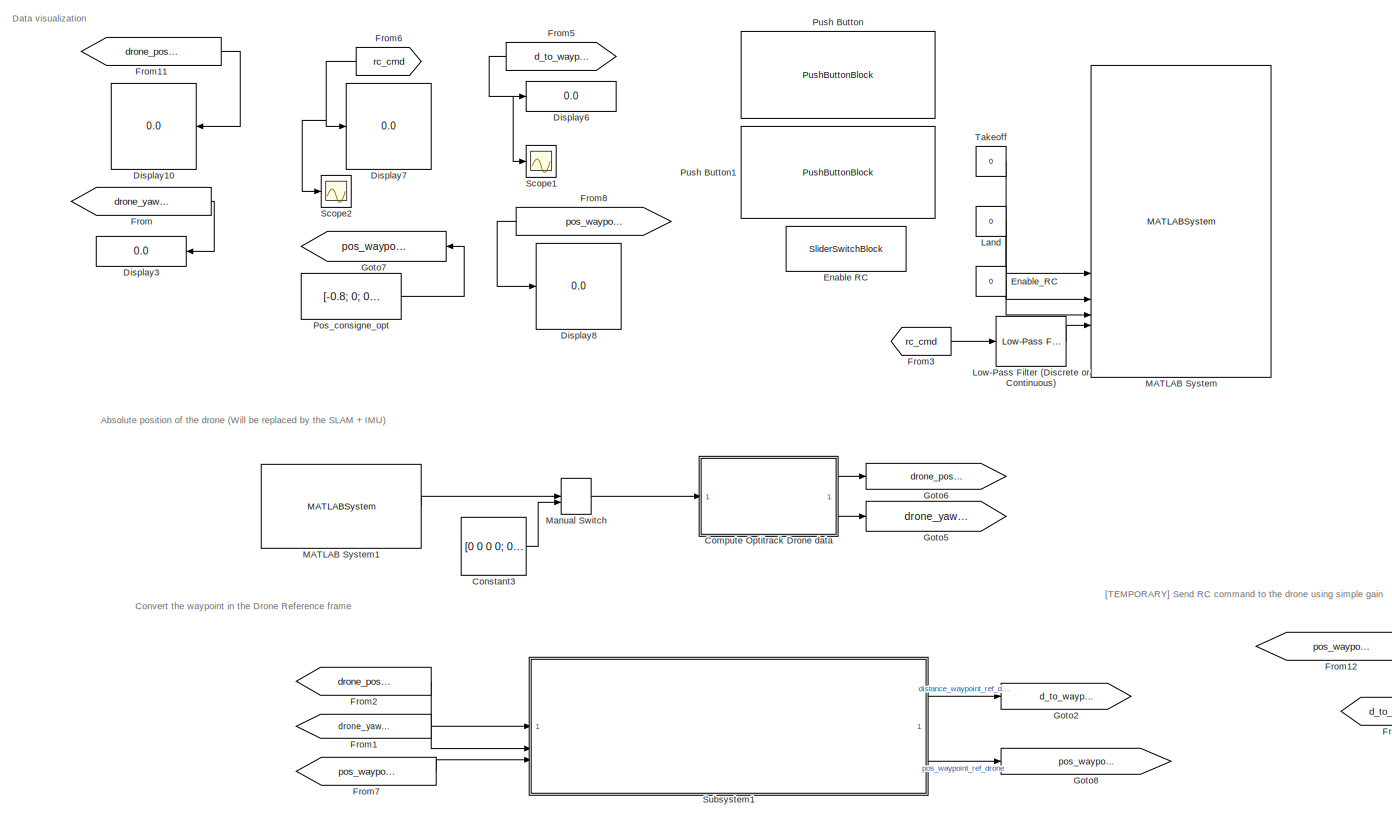
[diagram: root canvas - part 1/2, center side, full height]
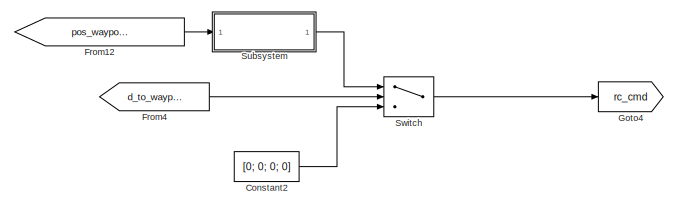
[diagram: root canvas - part 2/2, bottom right region]
MODEL slx_1315aa12b2da
KIND model
CONFIG AbsTol = auto
CONFIG EnableMultiTasking = off
CONFIG FixedStep = 0.1
CONFIG MaxStep = auto
CONFIG MinStep = auto
CONFIG RelTol = 1e-3
CONFIG SampleTimeConstraint = Unconstrained
CONFIG SolverName = FixedStepAuto
CONFIG StartTime = 0.0
CONFIG StopTime = inf
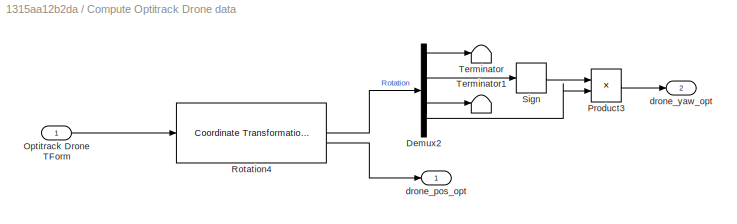
BLOCK [SubSystem] Compute Optitrack Drone data
BLOCK [Demux] Compute Optitrack Drone data/Demux2
BLOCK [Inport] Compute Optitrack Drone data/Optitrack Drone TForm
BLOCK [Product] Compute Optitrack Drone data/Product3
BLOCK [Reference] Compute Optitrack Drone data/Rotation4  REF=robotcorelib/Coordinate Transformation Conversion
  LibrarySourceBlock = uavutilslib/Coordinate Transformation Conversion
  SourceBlock = robotcorelib/Coordinate Transformation Conversion
  SourceType = robotics.slcore.internal.block.CoordinateTransformationConversion
BLOCK [Signum] Compute Optitrack Drone data/Sign
BLOCK [Terminator] Compute Optitrack Drone data/Terminator
BLOCK [Terminator] Compute Optitrack Drone data/Terminator1
BLOCK [Outport] Compute Optitrack Drone data/drone_pos_opt
BLOCK [Outport] Compute Optitrack Drone data/drone_yaw_opt
  Port = 2
BLOCK [Constant] Constant2
  Value = [0; 0; 0; 0]
BLOCK [Constant] Constant3
  Value = [0 0 0 0; 0 0 0 0; 0 0 0 0; 0 0 0 0]
BLOCK [Display] Display10
  Decimation = 1
  NameLocation = top
BLOCK [Display] Display3
  Decimation = 1
  NameLocation = top
BLOCK [Display] Display6
  Decimation = 1
BLOCK [Display] Display7
  Decimation = 1
BLOCK [Display] Display8
  Decimation = 1
BLOCK [SliderSwitchBlock] Enable RC
BLOCK [Constant] Enable_RC
  Value = 0
BLOCK [From] From
  GotoTag = drone_yaw_ref_opt
BLOCK [From] From1
  GotoTag = drone_yaw_ref_opt
BLOCK [From] From11
  GotoTag = drone_pos_ref_opt
BLOCK [From] From12
  GotoTag = pos_waypoint_ref_drone
BLOCK [From] From2
  GotoTag = drone_pos_ref_opt
BLOCK [From] From3
  GotoTag = rc_cmd
BLOCK [From] From4
  GotoTag = d_to_waypoint
BLOCK [From] From5
  GotoTag = d_to_waypoint
  NameLocation = top
BLOCK [From] From6
  GotoTag = rc_cmd
  NameLocation = top
BLOCK [From] From7
  GotoTag = pos_waypoint_ref_opt
BLOCK [From] From8
  GotoTag = pos_waypoint_ref_drone
  NameLocation = top
BLOCK [Goto] Goto2
  GotoTag = d_to_waypoint
BLOCK [Goto] Goto4
  GotoTag = rc_cmd
BLOCK [Goto] Goto5
  GotoTag = drone_yaw_ref_opt
BLOCK [Goto] Goto6
  GotoTag = drone_pos_ref_opt
BLOCK [Goto] Goto7
  GotoTag = pos_waypoint_ref_opt
  NameLocation = top
BLOCK [Goto] Goto8
  GotoTag = pos_waypoint_ref_drone
BLOCK [Constant] Land
  Value = 0
BLOCK [Reference] Low-Pass Filter (Discrete or Continuous)  REF=eeGeneralControl/Low-Pass Filter
(Discrete or Continuous)
  LibrarySourceBlock = ee_sl_lib/General Control/Low-Pass Filter\n(Discrete or Continuous)
  SourceBlock = eeGeneralControl/Low-Pass Filter\n(Discrete or Continuous)
  SourceType = Low-Pass Filter (Discrete or Continuous)
BLOCK [MATLABSystem] MATLAB System
  MaskDisplay = disp('Tello_drone_controlv2');\nport_label('input',1,'Slam');\nport_label('input',2,'tkoff');\nport_label('input',3,'landing');\nport_label('input',4,'enableRC');\nport_label('input',5,'rcspeeds');\nport_label('output',1,'imgresize');\nport_label('output',2,'Eulerangles');\nport_label('output',3,'speedXYZ');\nport_label('output',4,'accelXYZ');
  MaskType = Tello_drone_controlv2
  SimulateUsing = Interpreted execution
  System = Tello_drone_controlv2
  droneIP = 10.147.125.12
BLOCK [MATLABSystem] MATLAB System1
  ClientIP = 10.147.125.1
  HostIP = 10.147.125.15
  MaskDisplay = disp('OptilinkSystem');\nport_label('output',1,'Drones data');\nport_label('output',2,'Connected');
  MaskType = OptilinkSystem
  RigidbodyID = 3
  SimulateUsing = Interpreted execution
  System = OptilinkSystem
BLOCK [ManualSwitch] Manual Switch
BLOCK [Constant] Pos_consigne_opt
  Value = [-0.8; 0; 0.8; 1]
BLOCK [PushButtonBlock] Push Button
  ButtonText = Décoler
  OffValue = 0.000000
BLOCK [PushButtonBlock] Push Button1
  ButtonText = Atterir
  OffValue = 0.000000
BLOCK [Scope] Scope1
  Floating = off
  NumInputPorts = 1
  ScopeSpecificationString = Simulink.scopes.TimeScopeBlockCfg('CurrentConfiguration', extmgr.ConfigurationSet(extmgr.Configuration('Core','General UI',true),extmgr.Configuration('Core','Source UI',true),extmgr.Configuration('Sources','WiredSimulink',true,'DataLoggingVariableName','ScopeData1'),extmgr.Configuration('Visuals','Time Domain',true,'SerializedDisplays',{struct('MinYLimReal','2.298593','MaxYLimReal','2.298669','YLa...<+1546ch>
BLOCK [Scope] Scope2
  Floating = off
  NumInputPorts = 1
  ScopeSpecificationString = Simulink.scopes.TimeScopeBlockCfg('CurrentConfiguration', extmgr.ConfigurationSet(extmgr.Configuration('Core','General UI',true),extmgr.Configuration('Core','Source UI',true),extmgr.Configuration('Sources','WiredSimulink',true,'DataLoggingVariableName','ScopeData2'),extmgr.Configuration('Visuals','Time Domain',true,'SerializedDisplays',{struct('MinYLimReal','-0.9835','MaxYLimReal','8.85146','YLabe...<+1582ch>
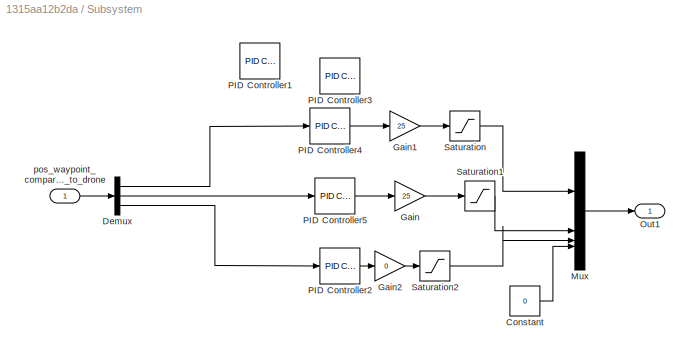
BLOCK [SubSystem] Subsystem
BLOCK [Constant] Subsystem/Constant
  Value = 0
BLOCK [Demux] Subsystem/Demux
  Outputs = 3
BLOCK [Gain] Subsystem/Gain
  Gain = 25
BLOCK [Gain] Subsystem/Gain1
  Gain = 25
BLOCK [Gain] Subsystem/Gain2
  Gain = 0
BLOCK [Mux] Subsystem/Mux
  DisplayOption = bar
BLOCK [Outport] Subsystem/Out1
BLOCK [Reference] Subsystem/PID Controller1  REF=slpidlib/PID Controller
  Commented = on
  LibrarySourceBlock = simulink/Continuous/PID Controller
  SourceBlock = slpidlib/PID Controller
  SourceType = PID 1dof
BLOCK [Reference] Subsystem/PID Controller2  REF=slpidlib/PID Controller
  LibrarySourceBlock = simulink/Continuous/PID Controller
  SourceBlock = slpidlib/PID Controller
  SourceType = PID 1dof
BLOCK [Reference] Subsystem/PID Controller3  REF=slpidlib/PID Controller
  Commented = on
  LibrarySourceBlock = simulink/Continuous/PID Controller
  SourceBlock = slpidlib/PID Controller
  SourceType = PID 1dof
BLOCK [Reference] Subsystem/PID Controller4  REF=slpidlib/PID Controller
  LibrarySourceBlock = simulink/Continuous/PID Controller
  SourceBlock = slpidlib/PID Controller
  SourceType = PID 1dof
BLOCK [Reference] Subsystem/PID Controller5  REF=slpidlib/PID Controller
  LibrarySourceBlock = simulink/Continuous/PID Controller
  SourceBlock = slpidlib/PID Controller
  SourceType = PID 1dof
BLOCK [Saturate] Subsystem/Saturation
  LowerLimit = -15
  UpperLimit = 10
BLOCK [Saturate] Subsystem/Saturation1
  LowerLimit = -15
  UpperLimit = 10
BLOCK [Saturate] Subsystem/Saturation2
  LowerLimit = -65
  UpperLimit = 65
BLOCK [Inport] Subsystem/pos_waypoint_compared_to_drone
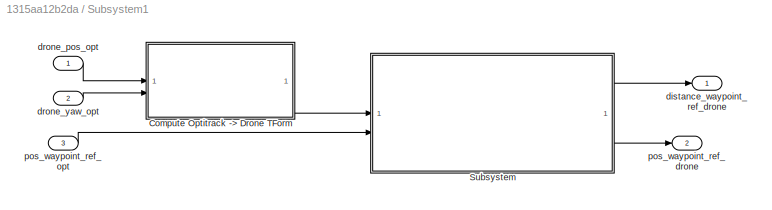
BLOCK [SubSystem] Subsystem1
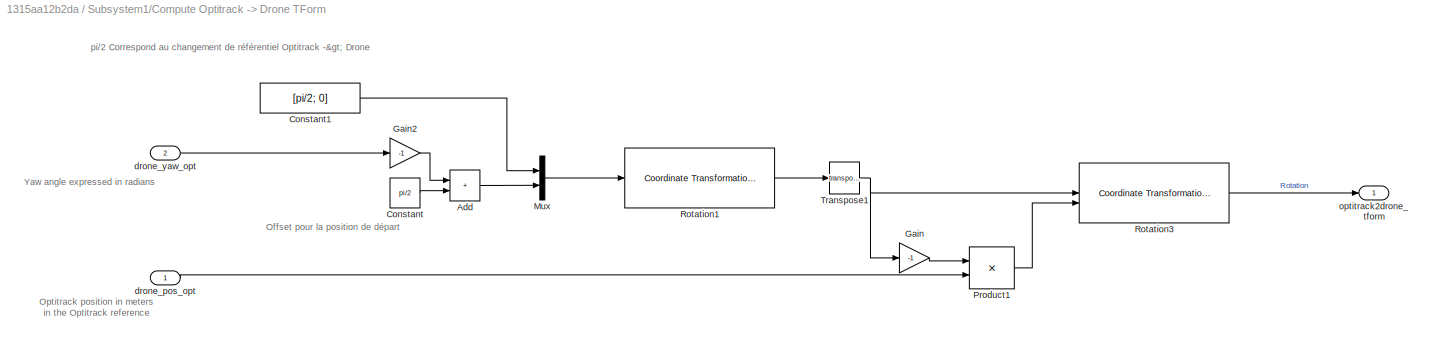
BLOCK [SubSystem] Subsystem1/Compute Optitrack -> Drone TForm
BLOCK [Sum] Subsystem1/Compute Optitrack -> Drone TForm/Add
  IconShape = rectangular
BLOCK [Constant] Subsystem1/Compute Optitrack -> Drone TForm/Constant
  Value = pi/2
BLOCK [Constant] Subsystem1/Compute Optitrack -> Drone TForm/Constant1
  Value = [pi/2; 0]
BLOCK [Gain] Subsystem1/Compute Optitrack -> Drone TForm/Gain
  Gain = -1
BLOCK [Gain] Subsystem1/Compute Optitrack -> Drone TForm/Gain2
  Gain = -1
BLOCK [Mux] Subsystem1/Compute Optitrack -> Drone TForm/Mux
  DisplayOption = bar
  Inputs = 2
BLOCK [Product] Subsystem1/Compute Optitrack -> Drone TForm/Product1
  Multiplication = Matrix(*)
BLOCK [Reference] Subsystem1/Compute Optitrack -> Drone TForm/Rotation1  REF=robotcorelib/Coordinate Transformation Conversion
  LibrarySourceBlock = uavutilslib/Coordinate Transformation Conversion
  SourceBlock = robotcorelib/Coordinate Transformation Conversion
  SourceType = robotics.slcore.internal.block.CoordinateTransformationConversion
BLOCK [Reference] Subsystem1/Compute Optitrack -> Drone TForm/Rotation3  REF=robotcorelib/Coordinate Transformation Conversion
  LibrarySourceBlock = uavutilslib/Coordinate Transformation Conversion
  SourceBlock = robotcorelib/Coordinate Transformation Conversion
  SourceType = robotics.slcore.internal.block.CoordinateTransformationConversion
BLOCK [Math] Subsystem1/Compute Optitrack -> Drone TForm/Transpose1
  Operator = transpose
BLOCK [Inport] Subsystem1/Compute Optitrack -> Drone TForm/drone_pos_opt
BLOCK [Inport] Subsystem1/Compute Optitrack -> Drone TForm/drone_yaw_opt
  Port = 2
BLOCK [Outport] Subsystem1/Compute Optitrack -> Drone TForm/optitrack2drone_tform
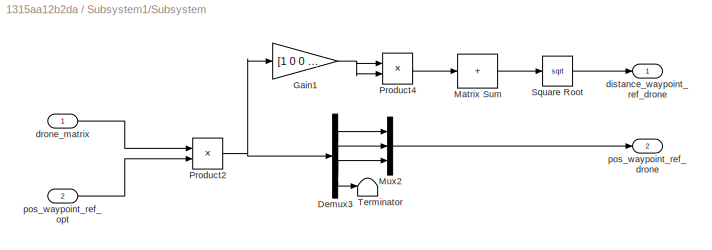
BLOCK [SubSystem] Subsystem1/Subsystem
BLOCK [Demux] Subsystem1/Subsystem/Demux3
BLOCK [Gain] Subsystem1/Subsystem/Gain1
  Gain = [1 0 0 0; 0 1 0 0; 0 0 0 0; 0 0 0 0]
  Multiplication = Matrix(K*u)
BLOCK [Sum] Subsystem1/Subsystem/Matrix Sum
  IconShape = rectangular
  Inputs = +
BLOCK [Mux] Subsystem1/Subsystem/Mux2
  DisplayOption = bar
  Inputs = 3
BLOCK [Product] Subsystem1/Subsystem/Product2
  Multiplication = Matrix(*)
BLOCK [Product] Subsystem1/Subsystem/Product4
BLOCK [Sqrt] Subsystem1/Subsystem/Square Root
BLOCK [Terminator] Subsystem1/Subsystem/Terminator
BLOCK [Outport] Subsystem1/Subsystem/distance_waypoint_ref_drone
BLOCK [Inport] Subsystem1/Subsystem/drone_matrix
BLOCK [Outport] Subsystem1/Subsystem/pos_waypoint_ref_drone
  Port = 2
BLOCK [Inport] Subsystem1/Subsystem/pos_waypoint_ref_opt
  Port = 2
BLOCK [Outport] Subsystem1/distance_waypoint_ref_drone
BLOCK [Inport] Subsystem1/drone_pos_opt
BLOCK [Inport] Subsystem1/drone_yaw_opt
  Port = 2
BLOCK [Outport] Subsystem1/pos_waypoint_ref_drone
  Port = 2
BLOCK [Inport] Subsystem1/pos_waypoint_ref_opt
  Port = 3
BLOCK [Switch] Switch
  Criteria = u2 > Threshold
  InputSameDT = off
  SaturateOnIntegerOverflow = off
  Threshold = 0.1
BLOCK [Constant] Takeoff
  Value = 0
ANNOTATION (root): Absolute position of the drone (Will be replaced by the SLAM + IMU)
ANNOTATION (root): Convert the waypoint in the Drone Reference frame
ANNOTATION (root): Data visualization
ANNOTATION (root): [TEMPORARY] Send RC command to the drone using simple gain
ANNOTATION Subsystem1/Compute Optitrack -> Drone TForm: pi/2 Correspond au changement de référentiel Optitrack -> Drone
ANNOTATION Subsystem1/Compute Optitrack -> Drone TForm: Optitrack position in meters in the Optitrack reference
ANNOTATION Subsystem1/Compute Optitrack -> Drone TForm: Yaw angle expressed in radians
ANNOTATION Subsystem1/Compute Optitrack -> Drone TForm: Offset pour la position de départ
LINE Compute Optitrack Drone data/Demux2:1 -> Compute Optitrack Drone data/Terminator:1
LINE Compute Optitrack Drone data/Demux2:2 -> Compute Optitrack Drone data/Sign:1
LINE Compute Optitrack Drone data/Demux2:3 -> Compute Optitrack Drone data/Terminator1:1
LINE Compute Optitrack Drone data/Demux2:4 -> Compute Optitrack Drone data/Product3:2
LINE Compute Optitrack Drone data/Optitrack Drone TForm:1 -> Compute Optitrack Drone data/Rotation4:1
LINE Compute Optitrack Drone data/Product3:1 -> Compute Optitrack Drone data/drone_yaw_opt:1
LINE Compute Optitrack Drone data/Rotation4:1 -> Compute Optitrack Drone data/Demux2:1
LINE Compute Optitrack Drone data/Rotation4:2 -> Compute Optitrack Drone data/drone_pos_opt:1
LINE Compute Optitrack Drone data/Sign:1 -> Compute Optitrack Drone data/Product3:1
LINE Compute Optitrack Drone data:1 -> Goto6:1
LINE Compute Optitrack Drone data:2 -> Goto5:1
LINE Constant2:1 -> Switch:3
LINE Constant3:1 -> Manual Switch:2
LINE Enable_RC:1 -> MATLAB System:4
LINE From11:1 -> Display10:1
LINE From12:1 -> Subsystem:1
LINE From1:1 -> Subsystem1:2
LINE From2:1 -> Subsystem1:1
LINE From3:1 -> Low-Pass Filter (Discrete or Continuous):1
LINE From4:1 -> Switch:2
NET From5:1 -> Display6:1, Scope1:1
NET From6:1 -> Display7:1, Scope2:1
LINE From7:1 -> Subsystem1:3
LINE From8:1 -> Display8:1
LINE From:1 -> Display3:1
LINE Land:1 -> MATLAB System:3
LINE Low-Pass Filter (Discrete or Continuous):1 -> MATLAB System:5
LINE MATLAB System1:1 -> Manual Switch:1
LINE Manual Switch:1 -> Compute Optitrack Drone data:1
LINE Pos_consigne_opt:1 -> Goto7:1
LINE Subsystem/Constant:1 -> Subsystem/Mux:4
LINE Subsystem/Demux:1 -> Subsystem/PID Controller4:1
LINE Subsystem/Demux:2 -> Subsystem/PID Controller5:1
LINE Subsystem/Demux:3 -> Subsystem/PID Controller2:1
LINE Subsystem/Gain1:1 -> Subsystem/Saturation:1
LINE Subsystem/Gain2:1 -> Subsystem/Saturation2:1
LINE Subsystem/Gain:1 -> Subsystem/Saturation1:1
LINE Subsystem/Mux:1 -> Subsystem/Out1:1
LINE Subsystem/PID Controller2:1 -> Subsystem/Gain2:1
LINE Subsystem/PID Controller4:1 -> Subsystem/Gain1:1
LINE Subsystem/PID Controller5:1 -> Subsystem/Gain:1
LINE Subsystem/Saturation1:1 -> Subsystem/Mux:2
LINE Subsystem/Saturation2:1 -> Subsystem/Mux:3
LINE Subsystem/Saturation:1 -> Subsystem/Mux:1
LINE Subsystem/pos_waypoint_compared_to_drone:1 -> Subsystem/Demux:1
LINE Subsystem1/Compute Optitrack -> Drone TForm/Add:1 -> Subsystem1/Compute Optitrack -> Drone TForm/Mux:2
LINE Subsystem1/Compute Optitrack -> Drone TForm/Constant1:1 -> Subsystem1/Compute Optitrack -> Drone TForm/Mux:1
LINE Subsystem1/Compute Optitrack -> Drone TForm/Constant:1 -> Subsystem1/Compute Optitrack -> Drone TForm/Add:2
LINE Subsystem1/Compute Optitrack -> Drone TForm/Gain2:1 -> Subsystem1/Compute Optitrack -> Drone TForm/Add:1
LINE Subsystem1/Compute Optitrack -> Drone TForm/Gain:1 -> Subsystem1/Compute Optitrack -> Drone TForm/Product1:1
LINE Subsystem1/Compute Optitrack -> Drone TForm/Mux:1 -> Subsystem1/Compute Optitrack -> Drone TForm/Rotation1:1
LINE Subsystem1/Compute Optitrack -> Drone TForm/Product1:1 -> Subsystem1/Compute Optitrack -> Drone TForm/Rotation3:2
LINE Subsystem1/Compute Optitrack -> Drone TForm/Rotation1:1 -> Subsystem1/Compute Optitrack -> Drone TForm/Transpose1:1
LINE Subsystem1/Compute Optitrack -> Drone TForm/Rotation3:1 -> Subsystem1/Compute Optitrack -> Drone TForm/optitrack2drone_tform:1
NET Subsystem1/Compute Optitrack -> Drone TForm/Transpose1:1 -> Subsystem1/Compute Optitrack -> Drone TForm/Gain:1, Subsystem1/Compute Optitrack -> Drone TForm/Rotation3:1
LINE Subsystem1/Compute Optitrack -> Drone TForm/drone_pos_opt:1 -> Subsystem1/Compute Optitrack -> Drone TForm/Product1:2
LINE Subsystem1/Compute Optitrack -> Drone TForm/drone_yaw_opt:1 -> Subsystem1/Compute Optitrack -> Drone TForm/Gain2:1
LINE Subsystem1/Compute Optitrack -> Drone TForm:1 -> Subsystem1/Subsystem:1
LINE Subsystem1/Subsystem/Demux3:1 -> Subsystem1/Subsystem/Mux2:1
LINE Subsystem1/Subsystem/Demux3:2 -> Subsystem1/Subsystem/Mux2:2
LINE Subsystem1/Subsystem/Demux3:3 -> Subsystem1/Subsystem/Mux2:3
LINE Subsystem1/Subsystem/Demux3:4 -> Subsystem1/Subsystem/Terminator:1
NET Subsystem1/Subsystem/Gain1:1 -> Subsystem1/Subsystem/Product4:1, Subsystem1/Subsystem/Product4:2
LINE Subsystem1/Subsystem/Matrix Sum:1 -> Subsystem1/Subsystem/Square Root:1
LINE Subsystem1/Subsystem/Mux2:1 -> Subsystem1/Subsystem/pos_waypoint_ref_drone:1
NET Subsystem1/Subsystem/Product2:1 -> Subsystem1/Subsystem/Demux3:1, Subsystem1/Subsystem/Gain1:1
LINE Subsystem1/Subsystem/Product4:1 -> Subsystem1/Subsystem/Matrix Sum:1
LINE Subsystem1/Subsystem/Square Root:1 -> Subsystem1/Subsystem/distance_waypoint_ref_drone:1
LINE Subsystem1/Subsystem/drone_matrix:1 -> Subsystem1/Subsystem/Product2:1
LINE Subsystem1/Subsystem/pos_waypoint_ref_opt:1 -> Subsystem1/Subsystem/Product2:2
LINE Subsystem1/Subsystem:1 -> Subsystem1/distance_waypoint_ref_drone:1
LINE Subsystem1/Subsystem:2 -> Subsystem1/pos_waypoint_ref_drone:1
LINE Subsystem1/drone_pos_opt:1 -> Subsystem1/Compute Optitrack -> Drone TForm:1
LINE Subsystem1/drone_yaw_opt:1 -> Subsystem1/Compute Optitrack -> Drone TForm:2
LINE Subsystem1/pos_waypoint_ref_opt:1 -> Subsystem1/Subsystem:2
LINE Subsystem1:1 -> Goto2:1
LINE Subsystem1:2 -> Goto8:1
LINE Subsystem:1 -> Switch:1
LINE Switch:1 -> Goto4:1
LINE Takeoff:1 -> MATLAB System:2
note: NET lines group one-source signal fan-out (src -> all destinations, sorted); 1:1 wires keep LINE
